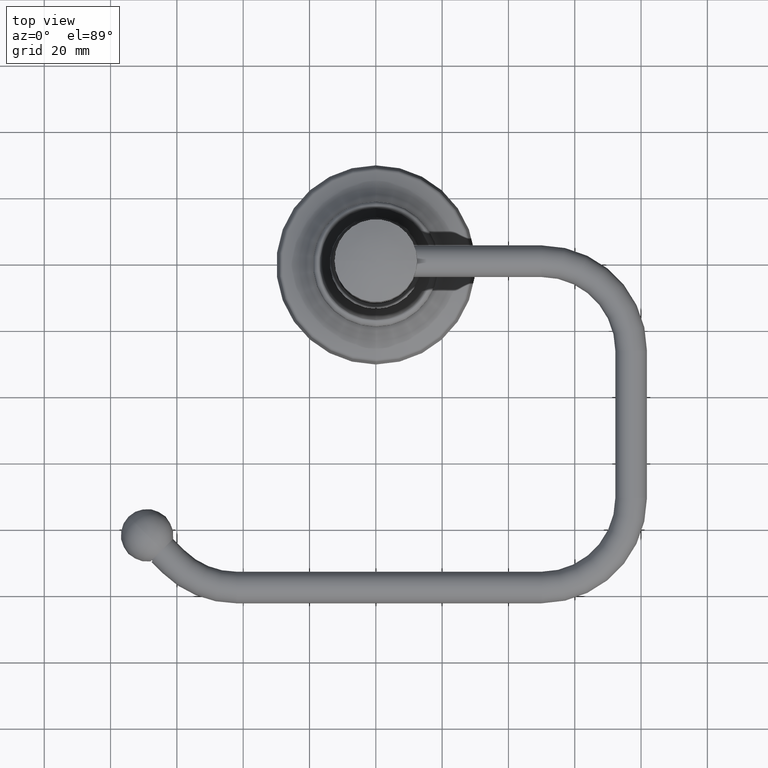
[diagram: clean part render]
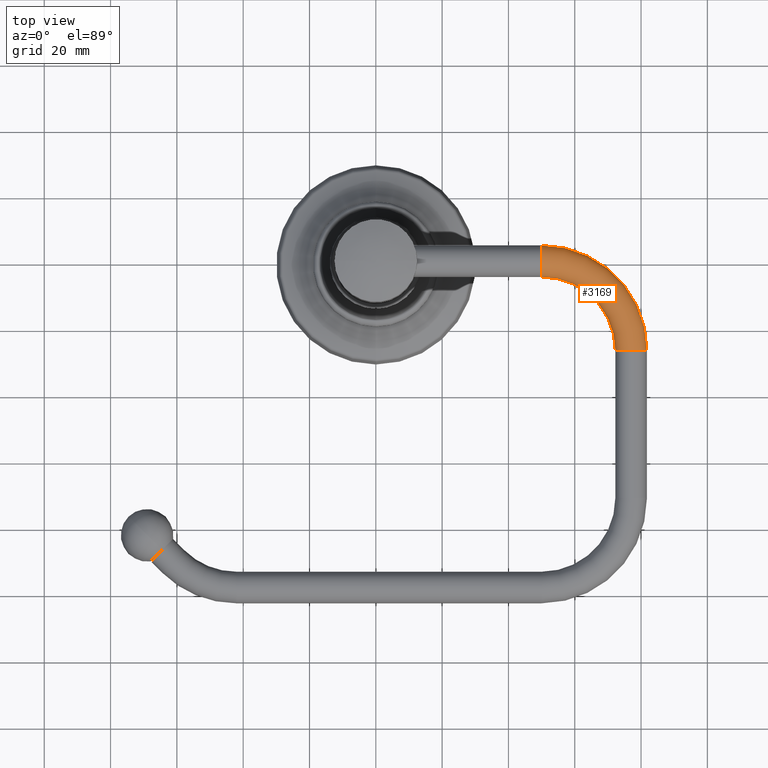
[diagram: same view with one face highlighted and labeled with its STEP entity id]
A machine part, top view. The second image highlights one B-rep face of the part: STEP entity #3169.
In plain terms, the highlighted toroidal blend (fillet) surface has major radius 26.9875 mm and minor (blend) radius 4.7625 mm.
Its self-contained STEP definition (entity closure, byte-faithful):
#2897=CARTESIAN_POINT('',(1.969E0,0.E0,2.531E0));
#2898=DIRECTION('',(1.E0,0.E0,0.E0));
#2899=DIRECTION('',(0.E0,1.E0,0.E0));
#2900=AXIS2_PLACEMENT_3D('',#2897,#2898,#2899);
#2902=CARTESIAN_POINT('',(1.969E0,-1.0625E0,2.531E0));
#2903=DIRECTION('',(0.E0,0.E0,-1.E0));
#2904=DIRECTION('',(0.E0,1.E0,0.E0));
#2905=AXIS2_PLACEMENT_3D('',#2902,#2903,#2904);
#2912=CARTESIAN_POINT('',(1.969E0,-1.0625E0,2.531E0));
#2913=DIRECTION('',(0.E0,0.E0,-1.E0));
#2914=DIRECTION('',(0.E0,1.E0,0.E0));
#2915=AXIS2_PLACEMENT_3D('',#2912,#2913,#2914);
#2926=CARTESIAN_POINT('',(3.0315E0,-1.0625E0,2.531E0));
#2927=DIRECTION('',(0.E0,-1.E0,0.E0));
#2928=DIRECTION('',(1.E0,0.E0,0.E0));
#2929=AXIS2_PLACEMENT_3D('',#2926,#2927,#2928);
#3051=CARTESIAN_POINT('',(1.969E0,-1.875E-1,2.531E0));
#3052=CARTESIAN_POINT('',(1.969E0,1.875E-1,2.531E0));
#3053=VERTEX_POINT('',#3051);
#3054=VERTEX_POINT('',#3052);
#3055=CARTESIAN_POINT('',(2.844E0,-1.0625E0,2.531E0));
#3056=CARTESIAN_POINT('',(3.219E0,-1.0625E0,2.531E0));
#3057=VERTEX_POINT('',#3055);
#3058=VERTEX_POINT('',#3056);
#3155=CARTESIAN_POINT('',(1.969E0,-1.0625E0,2.531E0));
#3156=DIRECTION('',(0.E0,0.E0,-1.E0));
#3157=DIRECTION('',(0.E0,-1.E0,0.E0));
#3158=AXIS2_PLACEMENT_3D('',#3155,#3156,#3157);
#3159=TOROIDAL_SURFACE('',#3158,1.0625E0,1.875E-1);
#3160=ORIENTED_EDGE('',*,*,#3135,.F.);
#3162=ORIENTED_EDGE('',*,*,#3161,.T.);
#3164=ORIENTED_EDGE('',*,*,#3163,.T.);
#3166=ORIENTED_EDGE('',*,*,#3165,.F.);
#3167=EDGE_LOOP('',(#3160,#3162,#3164,#3166));
#3168=FACE_OUTER_BOUND('',#3167,.F.);
#3169=ADVANCED_FACE('',(#3168),#3159,.T.);
#2901=CIRCLE('',#2900,1.875E-1);
#2906=CIRCLE('',#2905,1.25E0);
#2916=CIRCLE('',#2915,8.75E-1);
#2930=CIRCLE('',#2929,1.875E-1);
#3135=EDGE_CURVE('',#3054,#3053,#2901,.T.);
#3161=EDGE_CURVE('',#3054,#3058,#2906,.T.);
#3163=EDGE_CURVE('',#3058,#3057,#2930,.T.);
#3165=EDGE_CURVE('',#3053,#3057,#2916,.T.);